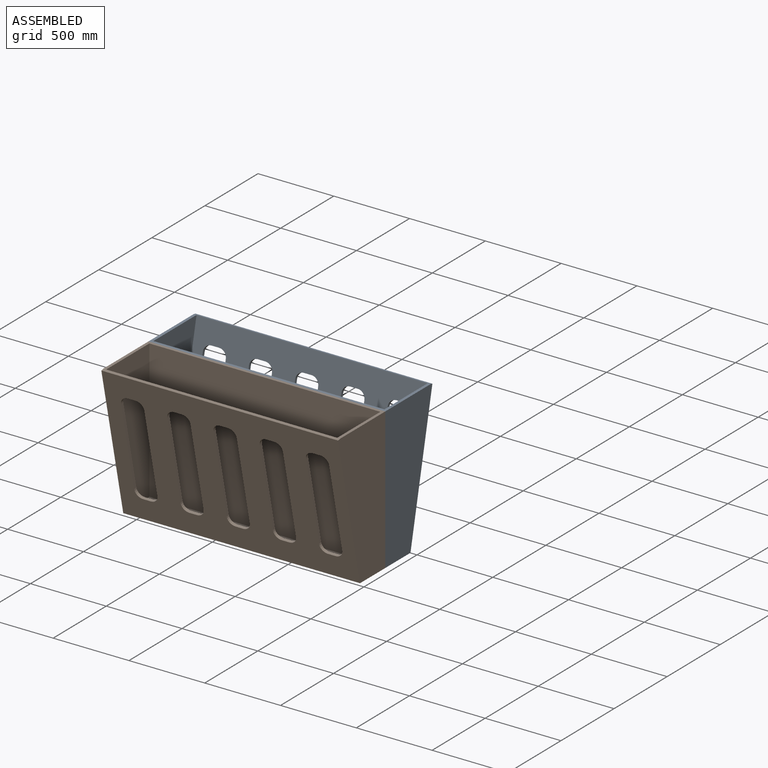
[diagram: assembled view]
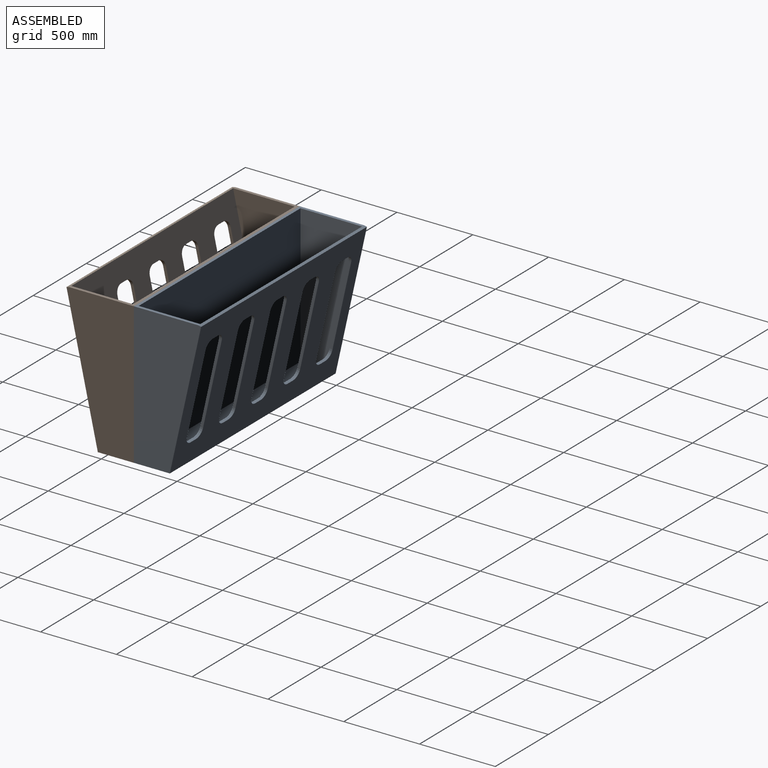
[diagram: assembled view, second angle]
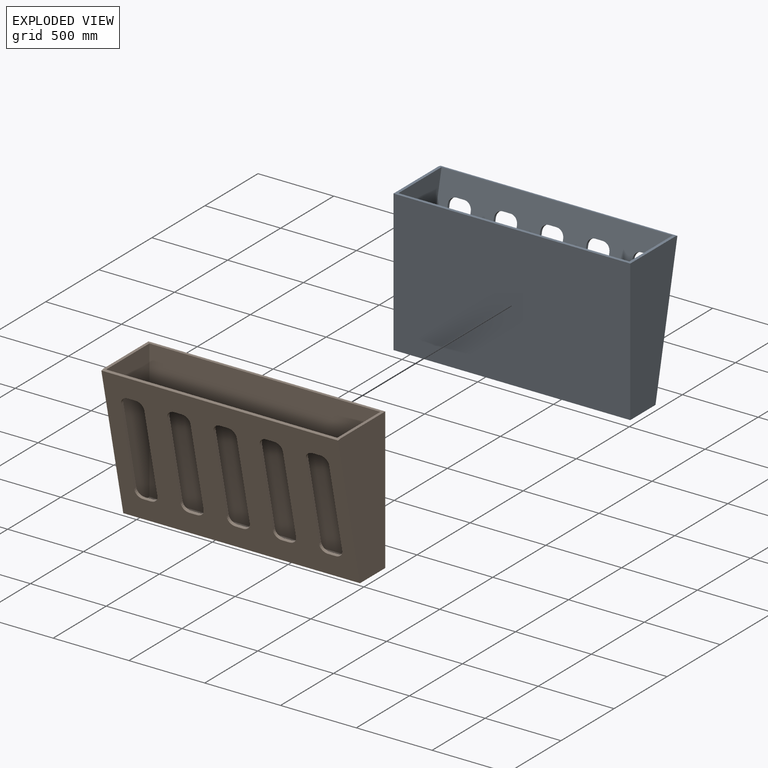
[diagram: exploded view]
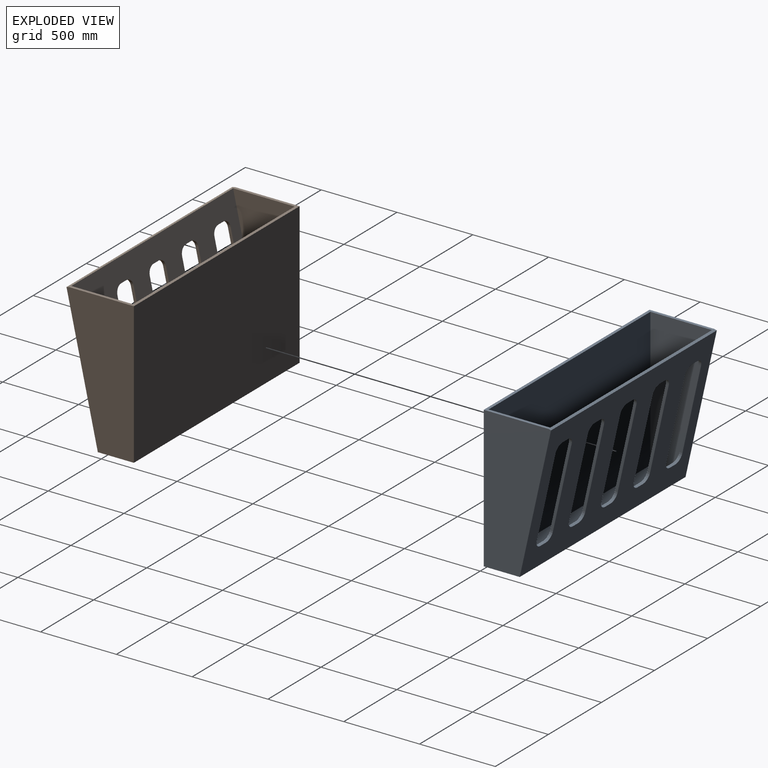
[diagram: exploded view, second angle]
ASSEMBLY  parts=2 mates=2
PART A: 52 faces, bbox 1562.1x444x933.5 mm
  f0: plane 1524x914.4mm, normal (0,0.98,0.22), area 926930.4mm2, adj f2,f7,f9,f10,f12,f13,f14,f15
  f1: plane 1562.1x929.32mm, normal (0,-0.98,-0.22), area 986489.9mm2, adj f2,f3,f8,f11,f12,f13,f14,f15
  f2: plane 1562.1x18.6mm, normal (0,-0.22,0.98), area 29758mm2, adj f0,f1,f5,f8,f11
  f3: plane 1562.1x237.53mm, normal (0,0,-1), area 371047.8mm2, adj f1,f4,f8,f11
  f4: plane 1562.1x933.45mm, normal (0,1,0), area 1458142.2mm2, adj f3,f5,f8,f11
  f5: plane 1562.1x425.45mm, normal (0,0,1), area 45241.8mm2, adj f2,f4,f6,f8,f9,f10,f11
  f6: plane 1524x914.4mm, normal (0,-1,0), area 1393545.6mm2, adj f5,f7,f9,f10
  f7: plane 1524x203.2mm, normal (0,0,1), area 309676.8mm2, adj f0,f6,f9,f10
  f8: plane 933.45x444.05mm, normal (1,0,0), area 318497.7mm2, adj f1,f2,f3,f4,f5
  f9: plane 914.4x406.4mm, normal (-1,0,0), area 278709.1mm2, adj f0,f5,f6,f7
  f10: plane 914.4x406.4mm, normal (1,0,0), area 278709.1mm2, adj f0,f5,f6,f7
  f11: plane 933.45x444.05mm, normal (-1,0,0), area 318497.7mm2, adj f1,f2,f3,f4,f5
  f12: plane 50.8x18.6mm, normal (0,0.22,-0.98), area 967.7mm2, adj f0,f1,f13,f19
  f13: cylinder r=50.8mm len=53.72mm, axis (0,-0.98,-0.22), area 1520.1mm2, adj f0,f1,f12,f14
  f14: plane 560.46x142.23mm, normal (1,0,0), area 10856.7mm2, adj f0,f1,f13,f15
  f15: cylinder r=50.8mm len=53.72mm, axis (0,-0.98,-0.22), area 1520.1mm2, adj f0,f1,f14,f16
  f16: plane 50.8x18.6mm, normal (0,-0.22,0.98), area 967.7mm2, adj f0,f1,f15,f17
  f17: cylinder r=50.8mm len=53.72mm, axis (0,-0.98,-0.22), area 1520.1mm2, adj f0,f1,f16,f18
  f18: plane 560.46x142.23mm, normal (-1,0,0), area 10856.7mm2, adj f0,f1,f17,f19
  f19: cylinder r=50.8mm len=53.72mm, axis (0,-0.98,-0.22), area 1520.1mm2, adj f0,f1,f12,f18
  f20: plane 50.8x18.6mm, normal (0,0.22,-0.98), area 967.7mm2, adj f0,f1,f21,f27
  f21: cylinder r=50.8mm len=53.72mm, axis (0,-0.98,-0.22), area 1520.1mm2, adj f0,f1,f20,f22
  f22: plane 560.46x142.23mm, normal (1,0,0), area 10856.7mm2, adj f0,f1,f21,f23
  f23: cylinder r=50.8mm len=53.72mm, axis (0,-0.98,-0.22), area 1520.1mm2, adj f0,f1,f22,f24
  f24: plane 50.8x18.6mm, normal (0,-0.22,0.98), area 967.7mm2, adj f0,f1,f23,f25
  f25: cylinder r=50.8mm len=53.72mm, axis (0,-0.98,-0.22), area 1520.1mm2, adj f0,f1,f24,f26
  f26: plane 560.46x142.23mm, normal (-1,0,0), area 10856.7mm2, adj f0,f1,f25,f27
  f27: cylinder r=50.8mm len=53.72mm, axis (0,-0.98,-0.22), area 1520.1mm2, adj f0,f1,f20,f26
  f28: plane 50.8x18.6mm, normal (0,0.22,-0.98), area 967.7mm2, adj f0,f1,f29,f35
  f29: cylinder r=50.8mm len=53.72mm, axis (0,-0.98,-0.22), area 1520.1mm2, adj f0,f1,f28,f30
  f30: plane 560.46x142.23mm, normal (1,0,0), area 10856.7mm2, adj f0,f1,f29,f31
  f31: cylinder r=50.8mm len=53.72mm, axis (0,-0.98,-0.22), area 1520.1mm2, adj f0,f1,f30,f32
  f32: plane 50.8x18.6mm, normal (0,-0.22,0.98), area 967.7mm2, adj f0,f1,f31,f33
  f33: cylinder r=50.8mm len=53.72mm, axis (0,-0.98,-0.22), area 1520.1mm2, adj f0,f1,f32,f34
  f34: plane 560.46x142.23mm, normal (-1,0,0), area 10856.7mm2, adj f0,f1,f33,f35
  f35: cylinder r=50.8mm len=53.72mm, axis (0,-0.98,-0.22), area 1520.1mm2, adj f0,f1,f28,f34
  f36: plane 50.8x18.6mm, normal (0,0.22,-0.98), area 967.7mm2, adj f0,f1,f37,f43
  f37: cylinder r=50.8mm len=53.72mm, axis (0,-0.98,-0.22), area 1520.1mm2, adj f0,f1,f36,f38
  f38: plane 560.46x142.23mm, normal (1,0,0), area 10856.7mm2, adj f0,f1,f37,f39
  f39: cylinder r=50.8mm len=53.72mm, axis (0,-0.98,-0.22), area 1520.1mm2, adj f0,f1,f38,f40
  f40: plane 50.8x18.6mm, normal (0,-0.22,0.98), area 967.7mm2, adj f0,f1,f39,f41
  f41: cylinder r=50.8mm len=53.72mm, axis (0,-0.98,-0.22), area 1520.1mm2, adj f0,f1,f40,f42
  f42: plane 560.46x142.23mm, normal (-1,0,0), area 10856.7mm2, adj f0,f1,f41,f43
  f43: cylinder r=50.8mm len=53.72mm, axis (0,-0.98,-0.22), area 1520.1mm2, adj f0,f1,f36,f42
  f44: plane 560.46x142.23mm, normal (-1,0,0), area 10856.7mm2, adj f0,f1,f45,f51
  f45: cylinder r=50.8mm len=53.72mm, axis (0,-0.98,-0.22), area 1520.1mm2, adj f0,f1,f44,f46
  f46: plane 50.8x18.6mm, normal (0,0.22,-0.98), area 967.7mm2, adj f0,f1,f45,f47
  f47: cylinder r=50.8mm len=53.72mm, axis (0,-0.98,-0.22), area 1520.1mm2, adj f0,f1,f46,f48
  f48: plane 560.46x142.23mm, normal (1,0,0), area 10856.7mm2, adj f0,f1,f47,f49
  f49: cylinder r=50.8mm len=53.72mm, axis (0,-0.98,-0.22), area 1520.1mm2, adj f0,f1,f48,f50
  f50: plane 50.8x18.6mm, normal (0,-0.22,0.98), area 967.7mm2, adj f0,f1,f49,f51
  f51: cylinder r=50.8mm len=53.72mm, axis (0,-0.98,-0.22), area 1520.1mm2, adj f0,f1,f44,f50
PART B: same geometry as A
PLACE A rot(axis=(0,0,1),180deg) t=(1474.44,729.38,-332.2)mm
PLACE B t=(-49.56,691.28,-332.2)mm fixed
MATE fastened A.f4 <-> B.f4  axis (0,-1,0) through (712.44,710.33,115.47)mm
MATE parallel B.f8 <-> A.f11  axis (1,0,0) through (1493.49,534.49,162.7)mm
